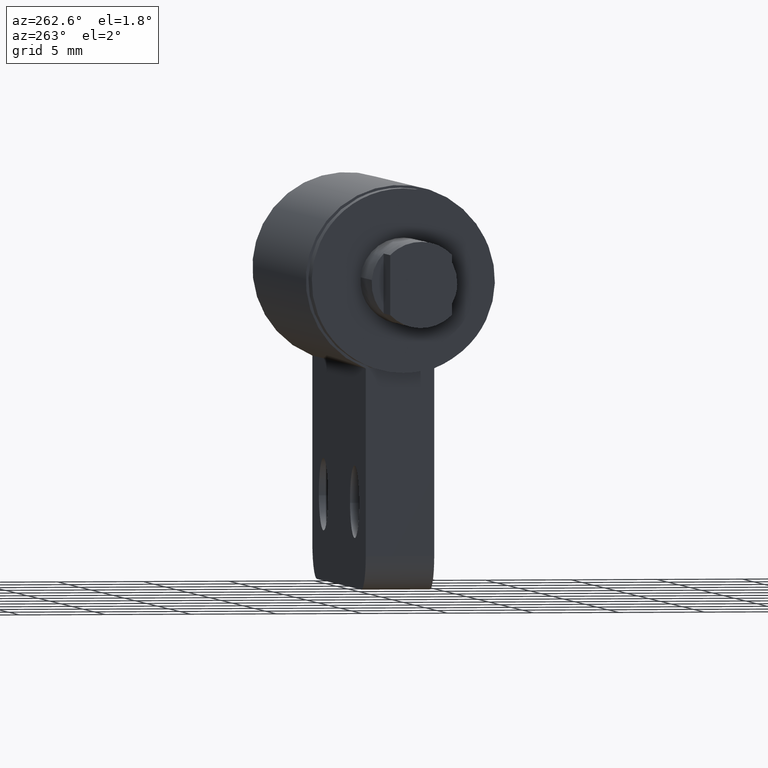
[diagram: clean part render]
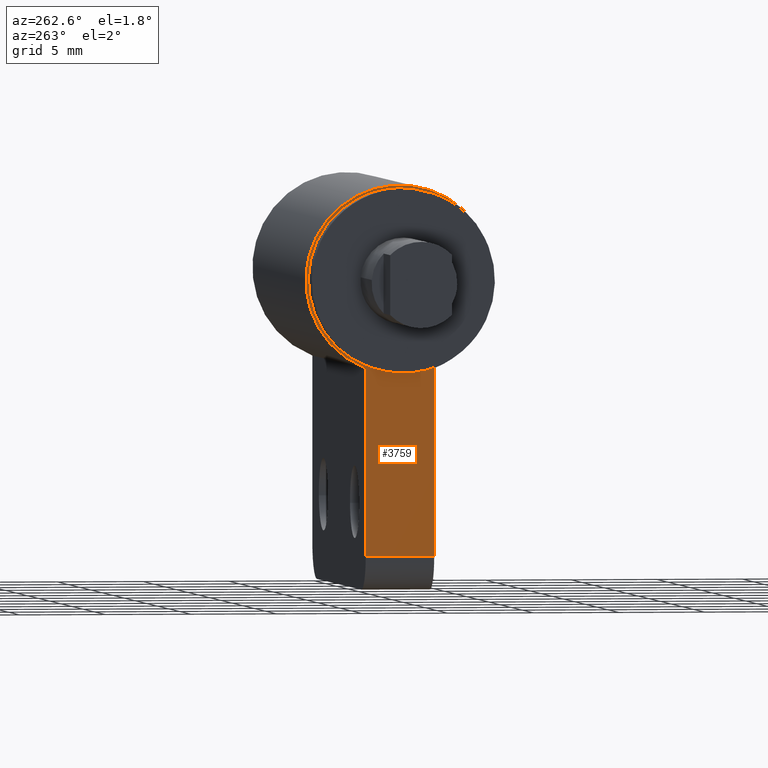
[diagram: same view with one face highlighted and labeled with its STEP entity id]
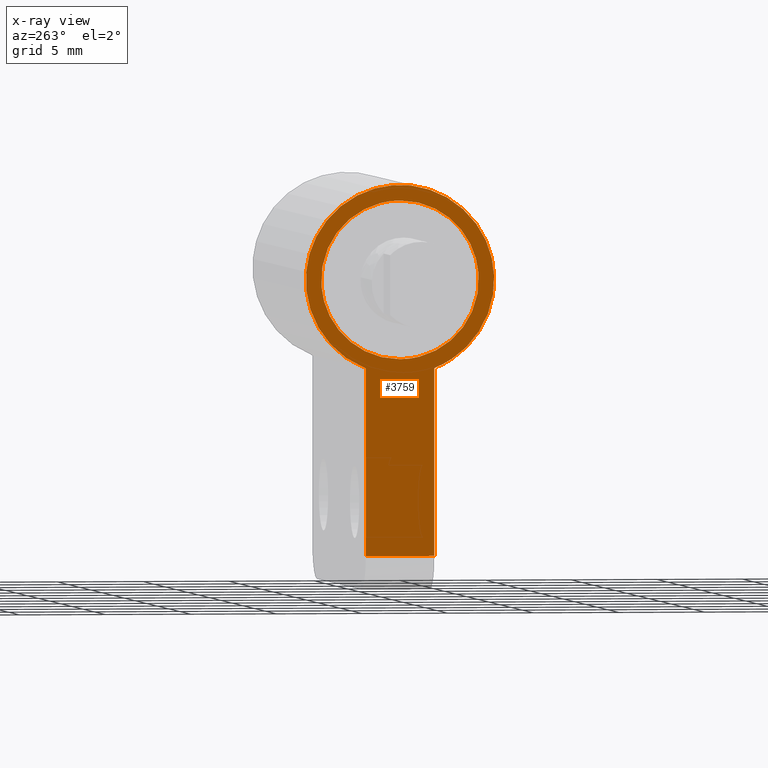
[diagram: x-ray of the same camera — body ghosted, the highlighted face saturated]
A machine part, auxiliary view. The second image highlights one B-rep face of the part: STEP entity #3759.
The next image is the same camera in x-ray: the body ghosted, the highlighted face saturated — about 0% of this face is hidden behind the body in this view.
In plain terms, the highlighted face is a freeform B-spline surface patch.
Its self-contained STEP definition (entity closure, byte-faithful):
#2911=CARTESIAN_POINT('',(6.500000000000000,0.0,4.600000000000000));
#2912=VERTEX_POINT('',#2911);
#2913=CARTESIAN_POINT('',(6.499999999999995,-4.585819944711611,0.360909177880063));
#2914=VERTEX_POINT('',#2913);
#2915=CARTESIAN_POINT('',(6.500000000000000,0.0,4.600000000000000));
#2916=CARTESIAN_POINT('',(6.500000000000000,-4.252198738032753,4.600000000000000));
#2917=CARTESIAN_POINT('',(6.499999999999996,-4.585819944711611,0.360909177880063));
#2925=(BOUNDED_CURVE()B_SPLINE_CURVE(2,(#2915,#2916,#2917),.UNSPECIFIED.,.F.,.U.)B_SPLINE_CURVE_WITH_KNOTS((3,3),(0.0,0.236331400159630),.UNSPECIFIED.)CURVE()GEOMETRIC_REPRESENTATION_ITEM()RATIONAL_B_SPLINE_CURVE((1.0,0.723120542002224,0.969723563876878))REPRESENTATION_ITEM(''));
#2926=EDGE_CURVE('',#2912,#2914,#2925,.T.);
#2928=CARTESIAN_POINT('',(6.499999999999993,4.585819944711611,-0.360909177880063));
#2929=VERTEX_POINT('',#2928);
#2930=CARTESIAN_POINT('',(6.499999999999992,4.585819944711611,-0.360909177880063));
#2931=CARTESIAN_POINT('',(6.500000000000000,4.600000000000000,-0.180733154823508));
#2932=CARTESIAN_POINT('',(6.500000000000000,4.600000000000000,0.0));
#2933=CARTESIAN_POINT('',(6.500000000000000,4.600000000000000,4.600000000000000));
#2934=CARTESIAN_POINT('',(6.500000000000000,0.0,4.600000000000000));
#2942=(BOUNDED_CURVE()B_SPLINE_CURVE(2,(#2930,#2931,#2932,#2933,#2934),.UNSPECIFIED.,.F.,.U.)B_SPLINE_CURVE_WITH_KNOTS((3,2,3),(0.736331400159630,0.750000000000000,1.0),.UNSPECIFIED.)CURVE()GEOMETRIC_REPRESENTATION_ITEM()RATIONAL_B_SPLINE_CURVE((0.969723563876878,0.983986239184324,1.0,0.707106781186547,1.0))REPRESENTATION_ITEM(''));
#2943=EDGE_CURVE('',#2929,#2912,#2942,.T.);
#3010=CARTESIAN_POINT('',(6.500000000000000,0.0,-4.600000000000000));
#3011=VERTEX_POINT('',#3010);
#3012=CARTESIAN_POINT('',(6.499999999999996,-4.585819944711611,0.360909177880063));
#3013=CARTESIAN_POINT('',(6.500000000000000,-4.600000000000000,0.180733154823508));
#3014=CARTESIAN_POINT('',(6.500000000000000,-4.600000000000000,0.0));
#3015=CARTESIAN_POINT('',(6.500000000000000,-4.600000000000000,-4.600000000000000));
#3016=CARTESIAN_POINT('',(6.500000000000000,0.0,-4.600000000000000));
#3024=(BOUNDED_CURVE()B_SPLINE_CURVE(2,(#3012,#3013,#3014,#3015,#3016),.UNSPECIFIED.,.F.,.U.)B_SPLINE_CURVE_WITH_KNOTS((3,2,3),(0.236331400159630,0.250000000000000,0.500000000000000),.UNSPECIFIED.)CURVE()GEOMETRIC_REPRESENTATION_ITEM()RATIONAL_B_SPLINE_CURVE((0.969723563876878,0.983986239184324,1.0,0.707106781186547,1.0))REPRESENTATION_ITEM(''));
#3025=EDGE_CURVE('',#2914,#3011,#3024,.T.);
#3059=CARTESIAN_POINT('',(6.500000000000000,0.0,-4.600000000000000));
#3060=CARTESIAN_POINT('',(6.500000000000002,4.252198738032752,-4.599999999999999));
#3061=CARTESIAN_POINT('',(6.499999999999992,4.585819944711611,-0.360909177880063));
#3069=(BOUNDED_CURVE()B_SPLINE_CURVE(2,(#3059,#3060,#3061),.UNSPECIFIED.,.F.,.U.)B_SPLINE_CURVE_WITH_KNOTS((3,3),(0.500000000000000,0.736331400159630),.UNSPECIFIED.)CURVE()GEOMETRIC_REPRESENTATION_ITEM()RATIONAL_B_SPLINE_CURVE((1.0,0.723120542002224,0.969723563876878))REPRESENTATION_ITEM(''));
#3070=EDGE_CURVE('',#3011,#2929,#3069,.T.);
#3461=CARTESIAN_POINT('',(6.500000000000000,-2.0,-15.999991999999899));
#3462=VERTEX_POINT('',#3461);
#3478=CARTESIAN_POINT('',(6.500000000000000,2.0,-15.999991999999899));
#3479=VERTEX_POINT('',#3478);
#3480=CARTESIAN_POINT('',(6.500000000000000,2.0,-15.999991999999899));
#3481=CARTESIAN_POINT('',(6.500000000000000,-2.0,-15.999991999999899));
#3482=QUASI_UNIFORM_CURVE('',1,(#3480,#3481),.UNSPECIFIED.,.F.,.U.);
#3483=EDGE_CURVE('',#3479,#3462,#3482,.T.);
#3588=CARTESIAN_POINT('',(6.500000000000000,2.0,-5.123474000000000));
#3589=VERTEX_POINT('',#3588);
#3590=CARTESIAN_POINT('',(6.500000000000000,2.0,-15.999991999999899));
#3591=CARTESIAN_POINT('',(6.500000000000000,2.0,-5.123474000000000));
#3592=QUASI_UNIFORM_CURVE('',1,(#3590,#3591),.UNSPECIFIED.,.F.,.U.);
#3593=EDGE_CURVE('',#3479,#3589,#3592,.T.);
#3645=CARTESIAN_POINT('',(6.500000000000000,-2.0,-5.123474000000000));
#3646=VERTEX_POINT('',#3645);
#3652=CARTESIAN_POINT('',(6.500000000000000,-2.0,-5.123474000000000));
#3653=CARTESIAN_POINT('',(6.500000000000000,-2.0,-15.999991999999899));
#3654=QUASI_UNIFORM_CURVE('',1,(#3652,#3653),.UNSPECIFIED.,.F.,.U.);
#3655=EDGE_CURVE('',#3646,#3462,#3654,.T.);
#3699=CARTESIAN_POINT('',(6.500000000000000,2.0,-5.123474000000000));
#3700=CARTESIAN_POINT('',(6.500000000000001,6.248921072255951,-3.464864210037245));
#3701=CARTESIAN_POINT('',(6.500000000000000,5.405047928931453,1.017568495034563));
#3702=CARTESIAN_POINT('',(6.500000000000001,4.561174785606956,5.500001200106373));
#3703=CARTESIAN_POINT('',(6.500000000000000,1.332268E-015,5.500001200106372));
#3704=CARTESIAN_POINT('',(6.500000000000001,-4.561174785606951,5.500001200106372));
#3705=CARTESIAN_POINT('',(6.500000000000000,-5.405047928931451,1.017568495034564));
#3706=CARTESIAN_POINT('',(6.500000000000001,-6.248921072255953,-3.464864210037245));
#3707=CARTESIAN_POINT('',(6.500000000000000,-2.0,-5.123474000000000));
#3715=(BOUNDED_CURVE()B_SPLINE_CURVE(2,(#3699,#3700,#3701,#3702,#3703,#3704,#3705,#3706,#3707),.UNSPECIFIED.,.F.,.U.)B_SPLINE_CURVE_WITH_KNOTS((3,2,2,2,3),(0.0,0.250000000000000,0.500000000000000,0.750000000000000,1.0),.UNSPECIFIED.)CURVE()GEOMETRIC_REPRESENTATION_ITEM()RATIONAL_B_SPLINE_CURVE((1.0,0.769744189793431,1.0,0.769744189793431,1.0,0.769744189793431,1.0,0.769744189793431,1.0))REPRESENTATION_ITEM(''));
#3716=EDGE_CURVE('',#3589,#3646,#3715,.T.);
#3742=CARTESIAN_POINT('',(6.500000000000000,-6.024497658997177,6.573926222433592));
#3743=CARTESIAN_POINT('',(6.500000000000000,6.024497426463167,6.573926222433592));
#3744=CARTESIAN_POINT('',(6.500000000000000,-6.024497658997176,-17.073917214552068));
#3745=CARTESIAN_POINT('',(6.500000000000000,6.024497426463167,-17.073917214552068));
#3746=B_SPLINE_SURFACE_WITH_KNOTS('',1,1,((#3742,#3744),(#3743,#3745)),.UNSPECIFIED.,.F.,.F.,.U.,(2,2),(2,2),(0.0,12.048995085460341),(0.0,23.647843436985660),.UNSPECIFIED.);
#3747=ORIENTED_EDGE('',*,*,#3593,.F.);
#3748=ORIENTED_EDGE('',*,*,#3483,.T.);
#3749=ORIENTED_EDGE('',*,*,#3655,.F.);
#3750=ORIENTED_EDGE('',*,*,#3716,.F.);
#3751=EDGE_LOOP('',(#3747,#3748,#3749,#3750));
#3752=FACE_OUTER_BOUND('',#3751,.T.);
#3753=ORIENTED_EDGE('',*,*,#3070,.T.);
#3754=ORIENTED_EDGE('',*,*,#2943,.T.);
#3755=ORIENTED_EDGE('',*,*,#2926,.T.);
#3756=ORIENTED_EDGE('',*,*,#3025,.T.);
#3757=EDGE_LOOP('',(#3753,#3754,#3755,#3756));
#3758=FACE_BOUND('',#3757,.T.);
#3759=ADVANCED_FACE('',(#3752,#3758),#3746,.T.);